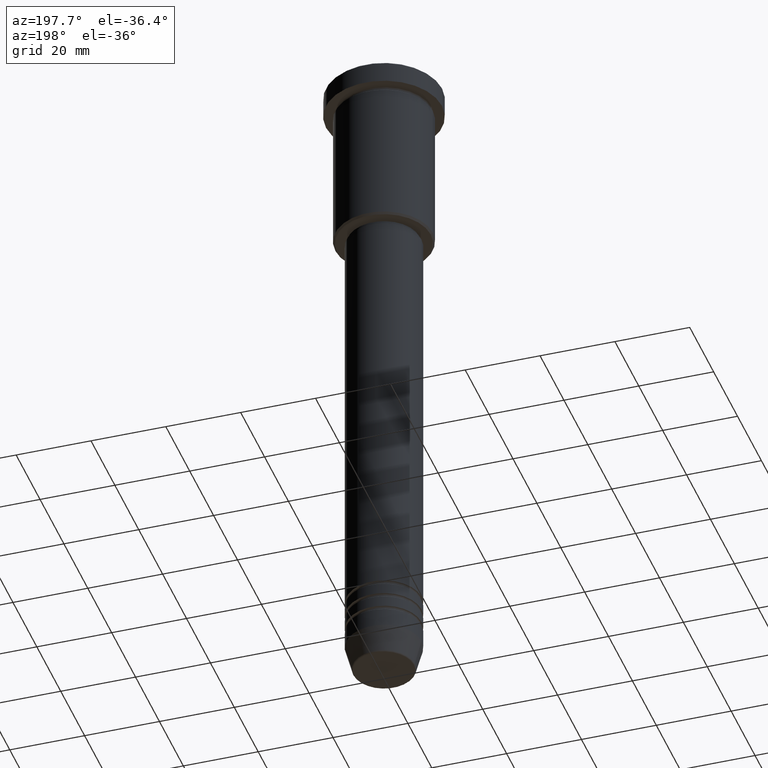
[diagram: clean part render]
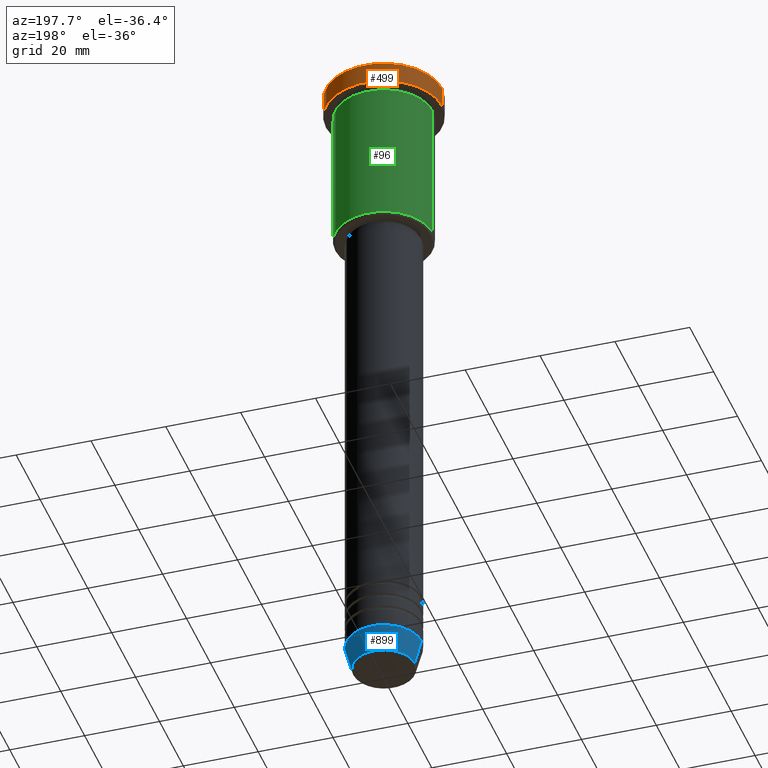
[diagram: same view with three faces highlighted in distinct colors, each labeled with its STEP entity id]
A machine part, auxiliary view with three faces highlighted in distinct colors.
Their STEP definitions:

[orange] entity #499 — the highlighted cylindrical surface (partial cylindrical patch) has radius 15.5 mm, axis along (-0, -0, 1).
#16 = ORIENTED_EDGE ( 'NONE', *, *, #1160, .F. ) ;
#19 = CARTESIAN_POINT ( 'NONE',  ( -15.50000000000000000, 1.898202538678397557E-15, 0.000000000000000000 ) ) ;
#20 = DIRECTION ( 'NONE',  ( -0.000000000000000000, -0.000000000000000000, 1.000000000000000000 ) ) ;
#39 = DIRECTION ( 'NONE',  ( -0.000000000000000000, -0.000000000000000000, 1.000000000000000000 ) ) ;
#59 = ORIENTED_EDGE ( 'NONE', *, *, #634, .T. ) ;
#76 = EDGE_CURVE ( 'NONE', #207, #710, #808, .T. ) ;
#94 = CARTESIAN_POINT ( 'NONE',  ( 0.000000000000000000, 0.000000000000000000, -0.5000000000000125455 ) ) ;
#135 = VERTEX_POINT ( 'NONE', #439 ) ;
#168 = AXIS2_PLACEMENT_3D ( 'NONE', #859, #39, #1131 ) ;
#195 = LINE ( 'NONE', #276, #1005 ) ;
#207 = VERTEX_POINT ( 'NONE', #467 ) ;
#276 = CARTESIAN_POINT ( 'NONE',  ( 15.50000000000000000, 0.000000000000000000, 0.000000000000000000 ) ) ;
#298 = CARTESIAN_POINT ( 'NONE',  ( -15.50000000000000000, 1.898202538678397557E-15, -5.999999999999995559 ) ) ;
#336 = FACE_OUTER_BOUND ( 'NONE', #1174, .T. ) ;
#343 = DIRECTION ( 'NONE',  ( 1.000000000000000000, 0.000000000000000000, 0.000000000000000000 ) ) ;
#365 = EDGE_CURVE ( 'NONE', #710, #855, #749, .T. ) ;
#376 = AXIS2_PLACEMENT_3D ( 'NONE', #94, #1162, #343 ) ;
#391 = DIRECTION ( 'NONE',  ( -0.000000000000000000, -0.000000000000000000, 1.000000000000000000 ) ) ;
#439 = CARTESIAN_POINT ( 'NONE',  ( 15.50000000000000000, 0.000000000000000000, -0.5000000000000125455 ) ) ;
#453 = AXIS2_PLACEMENT_3D ( 'NONE', #673, #595, #775 ) ;
#467 = CARTESIAN_POINT ( 'NONE',  ( 15.50000000000000000, 0.000000000000000000, -5.999999999999995559 ) ) ;
#499 = ADVANCED_FACE ( 'NONE', ( #336 ), #704, .T. ) ;
#541 = ORIENTED_EDGE ( 'NONE', *, *, #76, .T. ) ;
#595 = DIRECTION ( 'NONE',  ( -0.000000000000000000, -0.000000000000000000, 1.000000000000000000 ) ) ;
#619 = ORIENTED_EDGE ( 'NONE', *, *, #365, .T. ) ;
#634 = EDGE_CURVE ( 'NONE', #855, #135, #1138, .T. ) ;
#673 = CARTESIAN_POINT ( 'NONE',  ( 0.000000000000000000, 0.000000000000000000, 0.000000000000000000 ) ) ;
#704 = CYLINDRICAL_SURFACE ( 'NONE', #453, 15.50000000000000000 ) ;
#710 = VERTEX_POINT ( 'NONE', #298 ) ;
#749 = LINE ( 'NONE', #19, #1041 ) ;
#775 = DIRECTION ( 'NONE',  ( 1.000000000000000000, 0.000000000000000000, 0.000000000000000000 ) ) ;
#808 = CIRCLE ( 'NONE', #168, 15.50000000000000000 ) ;
#855 = VERTEX_POINT ( 'NONE', #1133 ) ;
#859 = CARTESIAN_POINT ( 'NONE',  ( 0.000000000000000000, 0.000000000000000000, -5.999999999999995559 ) ) ;
#1005 = VECTOR ( 'NONE', #20, 1000.000000000000000 ) ;
#1041 = VECTOR ( 'NONE', #391, 1000.000000000000000 ) ;
#1131 = DIRECTION ( 'NONE',  ( 1.000000000000000000, 0.000000000000000000, 0.000000000000000000 ) ) ;
#1133 = CARTESIAN_POINT ( 'NONE',  ( -15.50000000000000000, 1.898202538678397557E-15, -0.5000000000000125455 ) ) ;
#1138 = CIRCLE ( 'NONE', #376, 15.50000000000000000 ) ;
#1160 = EDGE_CURVE ( 'NONE', #207, #135, #195, .T. ) ;
#1162 = DIRECTION ( 'NONE',  ( 0.000000000000000000, 0.000000000000000000, -1.000000000000000000 ) ) ;
#1174 = EDGE_LOOP ( 'NONE', ( #541, #619, #59, #16 ) ) ;

[blue] entity #899 — the highlighted conical surface has half-angle 15 deg.
#32 = AXIS2_PLACEMENT_3D ( 'NONE', #1180, #81, #711 ) ;
#55 = CARTESIAN_POINT ( 'NONE',  ( 8.223655072137185940, 0.000000000000000000, -180.6294095225512990 ) ) ;
#81 = DIRECTION ( 'NONE',  ( -0.000000000000000000, -0.000000000000000000, 1.000000000000000000 ) ) ;
#86 = ORIENTED_EDGE ( 'NONE', *, *, #1052, .T. ) ;
#92 = VECTOR ( 'NONE', #572, 1000.000000000000114 ) ;
#93 = VERTEX_POINT ( 'NONE', #143 ) ;
#104 = DIRECTION ( 'NONE',  ( -0.000000000000000000, -0.000000000000000000, 1.000000000000000000 ) ) ;
#141 = CARTESIAN_POINT ( 'NONE',  ( -8.223655072137185940, 1.115877042642911659E-15, -180.6294095225512990 ) ) ;
#143 = CARTESIAN_POINT ( 'NONE',  ( 10.00000000000000000, 0.000000000000000000, -174.0000000000000284 ) ) ;
#190 = AXIS2_PLACEMENT_3D ( 'NONE', #1150, #762, #952 ) ;
#208 = DIRECTION ( 'NONE',  ( 1.000000000000000000, 0.000000000000000000, 0.000000000000000000 ) ) ;
#212 = CARTESIAN_POINT ( 'NONE',  ( 10.00000000000000000, 0.000000000000000000, -174.0000000000000284 ) ) ;
#236 = ORIENTED_EDGE ( 'NONE', *, *, #954, .F. ) ;
#241 = VECTOR ( 'NONE', #385, 1000.000000000000114 ) ;
#289 = CARTESIAN_POINT ( 'NONE',  ( 0.000000000000000000, 0.000000000000000000, -180.6294095225512990 ) ) ;
#301 = ORIENTED_EDGE ( 'NONE', *, *, #776, .T. ) ;
#303 = EDGE_LOOP ( 'NONE', ( #301, #86, #236, #988 ) ) ;
#316 = CIRCLE ( 'NONE', #532, 8.223655072137185940 ) ;
#328 = FACE_OUTER_BOUND ( 'NONE', #303, .T. ) ;
#337 = CIRCLE ( 'NONE', #32, 10.00000000000000000 ) ;
#385 = DIRECTION ( 'NONE',  ( 0.2588190451025210725, 0.000000000000000000, 0.9659258262890680902 ) ) ;
#447 = VERTEX_POINT ( 'NONE', #886 ) ;
#476 = VERTEX_POINT ( 'NONE', #141 ) ;
#477 = LINE ( 'NONE', #212, #241 ) ;
#532 = AXIS2_PLACEMENT_3D ( 'NONE', #289, #104, #208 ) ;
#535 = CONICAL_SURFACE ( 'NONE', #190, 10.00000000000000000, 0.2617993877991497964 ) ;
#564 = CARTESIAN_POINT ( 'NONE',  ( -10.00000000000000000, 1.224646799147353256E-15, -174.0000000000000284 ) ) ;
#572 = DIRECTION ( 'NONE',  ( -0.2588190451025210725, 3.169619151431769255E-17, 0.9659258262890680902 ) ) ;
#711 = DIRECTION ( 'NONE',  ( 1.000000000000000000, 0.000000000000000000, 0.000000000000000000 ) ) ;
#762 = DIRECTION ( 'NONE',  ( -0.000000000000000000, -0.000000000000000000, 1.000000000000000000 ) ) ;
#776 = EDGE_CURVE ( 'NONE', #874, #476, #316, .T. ) ;
#806 = EDGE_CURVE ( 'NONE', #874, #93, #477, .T. ) ;
#874 = VERTEX_POINT ( 'NONE', #55 ) ;
#886 = CARTESIAN_POINT ( 'NONE',  ( -10.00000000000000000, 1.224646799147353256E-15, -174.0000000000000284 ) ) ;
#899 = ADVANCED_FACE ( 'NONE', ( #328 ), #535, .T. ) ;
#952 = DIRECTION ( 'NONE',  ( 1.000000000000000000, 0.000000000000000000, 0.000000000000000000 ) ) ;
#954 = EDGE_CURVE ( 'NONE', #93, #447, #337, .T. ) ;
#988 = ORIENTED_EDGE ( 'NONE', *, *, #806, .F. ) ;
#1016 = LINE ( 'NONE', #564, #92 ) ;
#1052 = EDGE_CURVE ( 'NONE', #476, #447, #1016, .T. ) ;
#1150 = CARTESIAN_POINT ( 'NONE',  ( 0.000000000000000000, 0.000000000000000000, -174.0000000000000284 ) ) ;
#1180 = CARTESIAN_POINT ( 'NONE',  ( 0.000000000000000000, 0.000000000000000000, -174.0000000000000284 ) ) ;

[green] entity #96 — the highlighted cylindrical surface (partial cylindrical patch) has radius 13 mm, axis along (-0, -0, 1).
#44 = DIRECTION ( 'NONE',  ( -0.000000000000000000, -0.000000000000000000, 1.000000000000000000 ) ) ;
#73 = AXIS2_PLACEMENT_3D ( 'NONE', #466, #1118, #390 ) ;
#88 = EDGE_CURVE ( 'NONE', #884, #465, #955, .T. ) ;
#96 = ADVANCED_FACE ( 'NONE', ( #503 ), #322, .T. ) ;
#138 = CARTESIAN_POINT ( 'NONE',  ( -13.00000000000000178, 1.592040838891559293E-15, 0.000000000000000000 ) ) ;
#188 = CIRCLE ( 'NONE', #73, 13.00000000000000178 ) ;
#210 = DIRECTION ( 'NONE',  ( -1.000000000000000000, 0.000000000000000000, 0.000000000000000000 ) ) ;
#281 = CARTESIAN_POINT ( 'NONE',  ( 0.000000000000000000, 0.000000000000000000, -45.50000000000002132 ) ) ;
#292 = VECTOR ( 'NONE', #44, 1000.000000000000000 ) ;
#322 = CYLINDRICAL_SURFACE ( 'NONE', #1096, 13.00000000000000178 ) ;
#332 = ORIENTED_EDGE ( 'NONE', *, *, #408, .F. ) ;
#359 = ORIENTED_EDGE ( 'NONE', *, *, #683, .F. ) ;
#381 = EDGE_CURVE ( 'NONE', #1113, #884, #849, .T. ) ;
#390 = DIRECTION ( 'NONE',  ( 1.000000000000000000, 0.000000000000000000, 0.000000000000000000 ) ) ;
#403 = CARTESIAN_POINT ( 'NONE',  ( -13.00000000000000178, 1.592040838891559293E-15, -45.50000000000002132 ) ) ;
#408 = EDGE_CURVE ( 'NONE', #1113, #1068, #670, .T. ) ;
#411 = CARTESIAN_POINT ( 'NONE',  ( 13.00000000000000178, 0.000000000000000000, -6.999999999999995559 ) ) ;
#418 = CARTESIAN_POINT ( 'NONE',  ( 0.000000000000000000, 0.000000000000000000, 0.000000000000000000 ) ) ;
#465 = VERTEX_POINT ( 'NONE', #1147 ) ;
#466 = CARTESIAN_POINT ( 'NONE',  ( 0.000000000000000000, 0.000000000000000000, -6.999999999999995559 ) ) ;
#503 = FACE_OUTER_BOUND ( 'NONE', #645, .T. ) ;
#522 = ORIENTED_EDGE ( 'NONE', *, *, #381, .T. ) ;
#570 = CARTESIAN_POINT ( 'NONE',  ( 13.00000000000000178, 0.000000000000000000, -45.50000000000002132 ) ) ;
#601 = DIRECTION ( 'NONE',  ( 1.000000000000000000, 0.000000000000000000, 0.000000000000000000 ) ) ;
#645 = EDGE_LOOP ( 'NONE', ( #522, #649, #359, #332 ) ) ;
#649 = ORIENTED_EDGE ( 'NONE', *, *, #88, .T. ) ;
#670 = LINE ( 'NONE', #763, #1006 ) ;
#683 = EDGE_CURVE ( 'NONE', #1068, #465, #188, .T. ) ;
#684 = DIRECTION ( 'NONE',  ( -0.000000000000000000, -0.000000000000000000, 1.000000000000000000 ) ) ;
#763 = CARTESIAN_POINT ( 'NONE',  ( 13.00000000000000178, 0.000000000000000000, 0.000000000000000000 ) ) ;
#849 = CIRCLE ( 'NONE', #1098, 13.00000000000000178 ) ;
#884 = VERTEX_POINT ( 'NONE', #403 ) ;
#940 = DIRECTION ( 'NONE',  ( -0.000000000000000000, -0.000000000000000000, 1.000000000000000000 ) ) ;
#955 = LINE ( 'NONE', #138, #292 ) ;
#976 = DIRECTION ( 'NONE',  ( -0.000000000000000000, -0.000000000000000000, 1.000000000000000000 ) ) ;
#1006 = VECTOR ( 'NONE', #976, 1000.000000000000000 ) ;
#1068 = VERTEX_POINT ( 'NONE', #411 ) ;
#1096 = AXIS2_PLACEMENT_3D ( 'NONE', #418, #684, #601 ) ;
#1098 = AXIS2_PLACEMENT_3D ( 'NONE', #281, #940, #210 ) ;
#1113 = VERTEX_POINT ( 'NONE', #570 ) ;
#1118 = DIRECTION ( 'NONE',  ( -0.000000000000000000, -0.000000000000000000, 1.000000000000000000 ) ) ;
#1147 = CARTESIAN_POINT ( 'NONE',  ( -13.00000000000000178, 1.592040838891559293E-15, -6.999999999999995559 ) ) ;